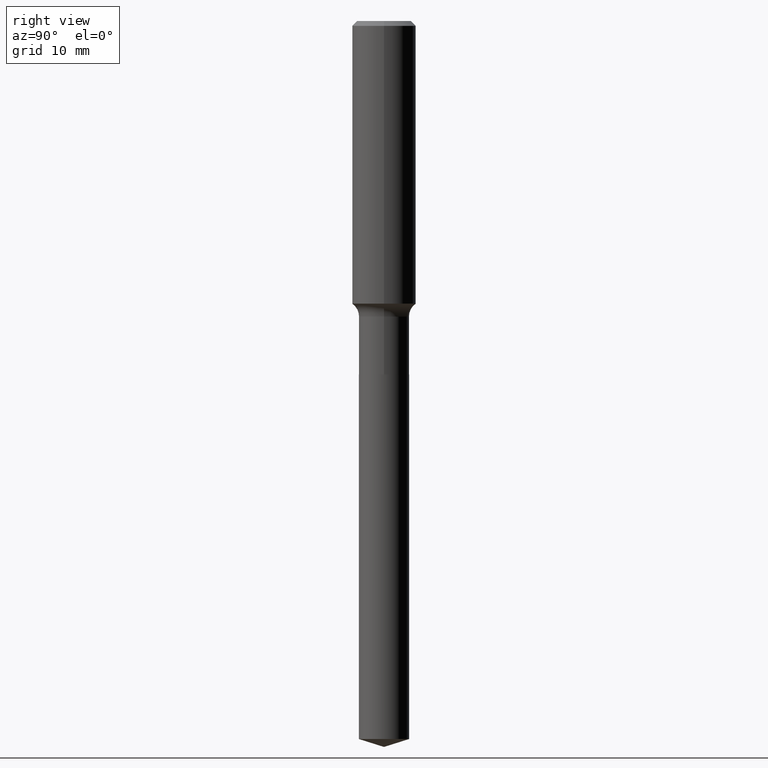
[diagram: clean part render]
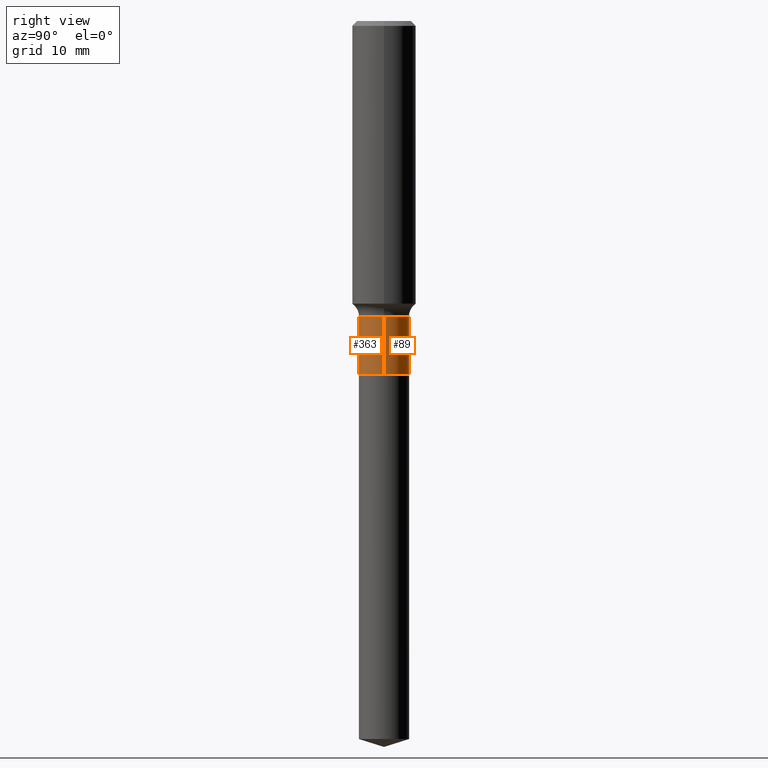
[diagram: same view with one multi-face feature highlighted, each face labeled with its STEP entity id]
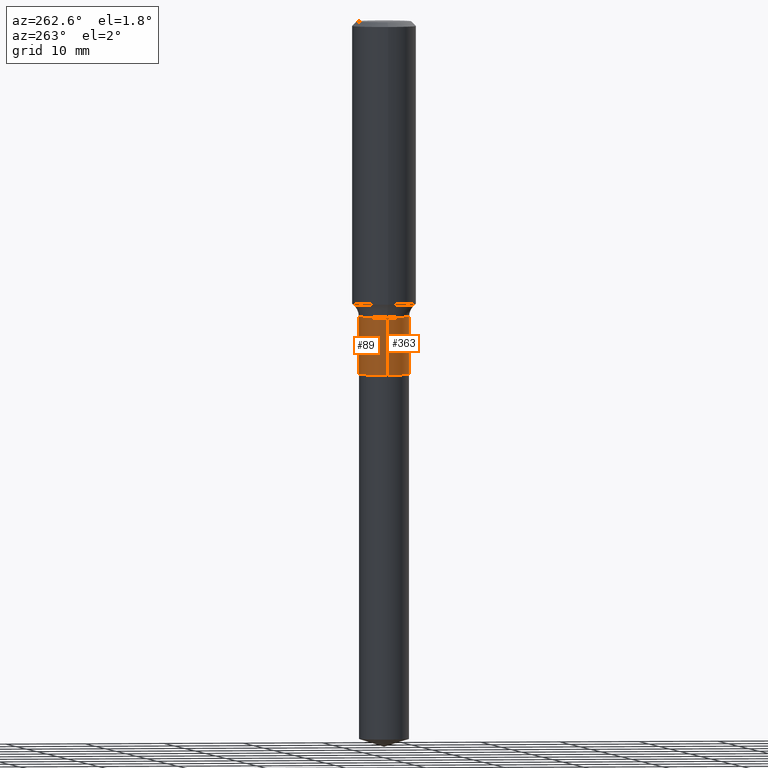
[diagram: same view with one multi-face feature highlighted, each face labeled with its STEP entity id]
A machine part, right view. The highlighted faces form ONE feature: a constant-radius fillet chain: 2 tangent blend faces with common blend radius 3.1496 mm. The faces share edges in the B-rep.
A second angle (auxiliary view) of the same feature is appended — it is thin or edge-on in the first view.
Their STEP definitions:
[1] entity #89 (Cylinder):
#7 = VERTEX_POINT ( 'NONE', #90 ) ;
#11 = EDGE_LOOP ( 'NONE', ( #439, #201, #348, #152 ) ) ;
#19 = CARTESIAN_POINT ( 'NONE',  ( 3.567694441343495447E-29, -5.093722125238264272E-15, -1.458899999999999864 ) ) ;
#55 = DIRECTION ( 'NONE',  ( -2.445468806185136597E-29, 3.491481338843145583E-15, 1.000000000000000000 ) ) ;
#59 = LINE ( 'NONE', #300, #378 ) ;
#65 = CYLINDRICAL_SURFACE ( 'NONE', #158, 0.1239999999999999852 ) ;
#89 = ADVANCED_FACE ( 'NONE', ( #294 ), #65, .T. ) ;
#90 = CARTESIAN_POINT ( 'NONE',  ( -0.1239999999999999575, -4.709661501480063019E-15, -1.458899999999999864 ) ) ;
#94 = CARTESIAN_POINT ( 'NONE',  ( -0.1240000000000000130, -4.709661501480063019E-15, -1.743600000000000261 ) ) ;
#98 = CIRCLE ( 'NONE', #449, 0.1239999999999999991 ) ;
#116 = CARTESIAN_POINT ( 'NONE',  ( 0.1239999999999999991, -6.953634234440005961E-15, -1.743600000000000261 ) ) ;
#130 = DIRECTION ( 'NONE',  ( -2.445468806185136877E-29, 3.491481338843145188E-15, 1.000000000000000000 ) ) ;
#133 = DIRECTION ( 'NONE',  ( -2.445468806185136597E-29, 3.491481338843145583E-15, 1.000000000000000000 ) ) ;
#152 = ORIENTED_EDGE ( 'NONE', *, *, #315, .F. ) ;
#158 = AXIS2_PLACEMENT_3D ( 'NONE', #169, #133, #340 ) ;
#169 = CARTESIAN_POINT ( 'NONE',  ( 0.000000000000000000, 0.000000000000000000, 0.000000000000000000 ) ) ;
#192 = CIRCLE ( 'NONE', #234, 0.1239999999999999575 ) ;
#201 = ORIENTED_EDGE ( 'NONE', *, *, #388, .T. ) ;
#204 = EDGE_CURVE ( 'NONE', #233, #356, #98, .T. ) ;
#209 = VECTOR ( 'NONE', #302, 39.37007874015748143 ) ;
#216 = EDGE_CURVE ( 'NONE', #230, #7, #192, .T. ) ;
#230 = VERTEX_POINT ( 'NONE', #491 ) ;
#233 = VERTEX_POINT ( 'NONE', #116 ) ;
#234 = AXIS2_PLACEMENT_3D ( 'NONE', #19, #327, #472 ) ;
#235 = LINE ( 'NONE', #237, #209 ) ;
#237 = CARTESIAN_POINT ( 'NONE',  ( 0.1239999999999999852, -8.658873720330969301E-16, 6.046459201986959234E-30 ) ) ;
#256 = CARTESIAN_POINT ( 'NONE',  ( 4.263919410464404773E-29, -6.087746862406909425E-15, -1.743600000000000261 ) ) ;
#294 = FACE_OUTER_BOUND ( 'NONE', #11, .T. ) ;
#300 = CARTESIAN_POINT ( 'NONE',  ( -0.1239999999999999852, 8.810729923425241256E-16, -6.099479511916081746E-30 ) ) ;
#302 = DIRECTION ( 'NONE',  ( -2.445468806185136877E-29, 3.491481338843145188E-15, 1.000000000000000000 ) ) ;
#315 = EDGE_CURVE ( 'NONE', #233, #230, #235, .T. ) ;
#327 = DIRECTION ( 'NONE',  ( -2.445468806185136597E-29, 3.491481338843145583E-15, 1.000000000000000000 ) ) ;
#340 = DIRECTION ( 'NONE',  ( 1.000000000000000000, -6.982962677686266711E-15, 4.876176775795935232E-29 ) ) ;
#348 = ORIENTED_EDGE ( 'NONE', *, *, #216, .F. ) ;
#356 = VERTEX_POINT ( 'NONE', #94 ) ;
#378 = VECTOR ( 'NONE', #130, 39.37007874015748143 ) ;
#388 = EDGE_CURVE ( 'NONE', #356, #7, #59, .T. ) ;
#439 = ORIENTED_EDGE ( 'NONE', *, *, #204, .T. ) ;
#446 = DIRECTION ( 'NONE',  ( 1.000000000000000000, -6.982962677686262766E-15, 0.000000000000000000 ) ) ;
#449 = AXIS2_PLACEMENT_3D ( 'NONE', #256, #55, #446 ) ;
#472 = DIRECTION ( 'NONE',  ( 1.000000000000000000, -6.982962677686265133E-15, 0.000000000000000000 ) ) ;
#491 = CARTESIAN_POINT ( 'NONE',  ( 0.1239999999999999575, -5.959609497271360808E-15, -1.458899999999999864 ) ) ;
[2] entity #363 (Cylinder):
#7 = VERTEX_POINT ( 'NONE', #90 ) ;
#27 = CARTESIAN_POINT ( 'NONE',  ( 4.263919410464404773E-29, -6.087746862406909425E-15, -1.743600000000000261 ) ) ;
#39 = AXIS2_PLACEMENT_3D ( 'NONE', #473, #140, #63 ) ;
#47 = EDGE_CURVE ( 'NONE', #356, #233, #137, .T. ) ;
#59 = LINE ( 'NONE', #300, #378 ) ;
#63 = DIRECTION ( 'NONE',  ( 1.000000000000000000, -6.982962677686266711E-15, 4.876176775795935232E-29 ) ) ;
#90 = CARTESIAN_POINT ( 'NONE',  ( -0.1239999999999999575, -4.709661501480063019E-15, -1.458899999999999864 ) ) ;
#94 = CARTESIAN_POINT ( 'NONE',  ( -0.1240000000000000130, -4.709661501480063019E-15, -1.743600000000000261 ) ) ;
#116 = CARTESIAN_POINT ( 'NONE',  ( 0.1239999999999999991, -6.953634234440005961E-15, -1.743600000000000261 ) ) ;
#130 = DIRECTION ( 'NONE',  ( -2.445468806185136877E-29, 3.491481338843145188E-15, 1.000000000000000000 ) ) ;
#134 = CARTESIAN_POINT ( 'NONE',  ( 3.567694441343495447E-29, -5.093722125238264272E-15, -1.458899999999999864 ) ) ;
#137 = CIRCLE ( 'NONE', #165, 0.1239999999999999991 ) ;
#140 = DIRECTION ( 'NONE',  ( -2.445468806185136597E-29, 3.491481338843145583E-15, 1.000000000000000000 ) ) ;
#165 = AXIS2_PLACEMENT_3D ( 'NONE', #27, #242, #376 ) ;
#209 = VECTOR ( 'NONE', #302, 39.37007874015748143 ) ;
#227 = ORIENTED_EDGE ( 'NONE', *, *, #399, .F. ) ;
#230 = VERTEX_POINT ( 'NONE', #491 ) ;
#233 = VERTEX_POINT ( 'NONE', #116 ) ;
#235 = LINE ( 'NONE', #237, #209 ) ;
#237 = CARTESIAN_POINT ( 'NONE',  ( 0.1239999999999999852, -8.658873720330969301E-16, 6.046459201986959234E-30 ) ) ;
#242 = DIRECTION ( 'NONE',  ( -2.445468806185136597E-29, 3.491481338843145583E-15, 1.000000000000000000 ) ) ;
#252 = DIRECTION ( 'NONE',  ( 1.000000000000000000, -6.982962677686265133E-15, 0.000000000000000000 ) ) ;
#280 = ORIENTED_EDGE ( 'NONE', *, *, #47, .T. ) ;
#281 = AXIS2_PLACEMENT_3D ( 'NONE', #134, #451, #252 ) ;
#300 = CARTESIAN_POINT ( 'NONE',  ( -0.1239999999999999852, 8.810729923425241256E-16, -6.099479511916081746E-30 ) ) ;
#302 = DIRECTION ( 'NONE',  ( -2.445468806185136877E-29, 3.491481338843145188E-15, 1.000000000000000000 ) ) ;
#315 = EDGE_CURVE ( 'NONE', #233, #230, #235, .T. ) ;
#333 = FACE_OUTER_BOUND ( 'NONE', #393, .T. ) ;
#356 = VERTEX_POINT ( 'NONE', #94 ) ;
#362 = ORIENTED_EDGE ( 'NONE', *, *, #315, .T. ) ;
#363 = ADVANCED_FACE ( 'NONE', ( #333 ), #408, .T. ) ;
#376 = DIRECTION ( 'NONE',  ( 1.000000000000000000, -6.982962677686262766E-15, 0.000000000000000000 ) ) ;
#378 = VECTOR ( 'NONE', #130, 39.37007874015748143 ) ;
#387 = CIRCLE ( 'NONE', #281, 0.1239999999999999575 ) ;
#388 = EDGE_CURVE ( 'NONE', #356, #7, #59, .T. ) ;
#393 = EDGE_LOOP ( 'NONE', ( #456, #280, #362, #227 ) ) ;
#399 = EDGE_CURVE ( 'NONE', #7, #230, #387, .T. ) ;
#408 = CYLINDRICAL_SURFACE ( 'NONE', #39, 0.1239999999999999852 ) ;
#451 = DIRECTION ( 'NONE',  ( -2.445468806185136597E-29, 3.491481338843145583E-15, 1.000000000000000000 ) ) ;
#456 = ORIENTED_EDGE ( 'NONE', *, *, #388, .F. ) ;
#473 = CARTESIAN_POINT ( 'NONE',  ( 0.000000000000000000, 0.000000000000000000, 0.000000000000000000 ) ) ;
#491 = CARTESIAN_POINT ( 'NONE',  ( 0.1239999999999999575, -5.959609497271360808E-15, -1.458899999999999864 ) ) ;